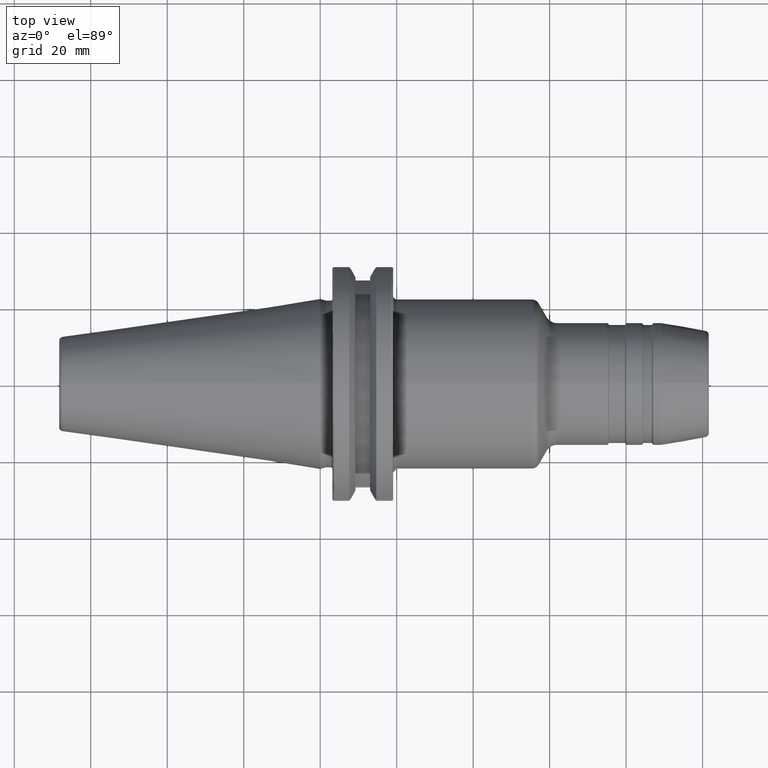
[diagram: clean part render]
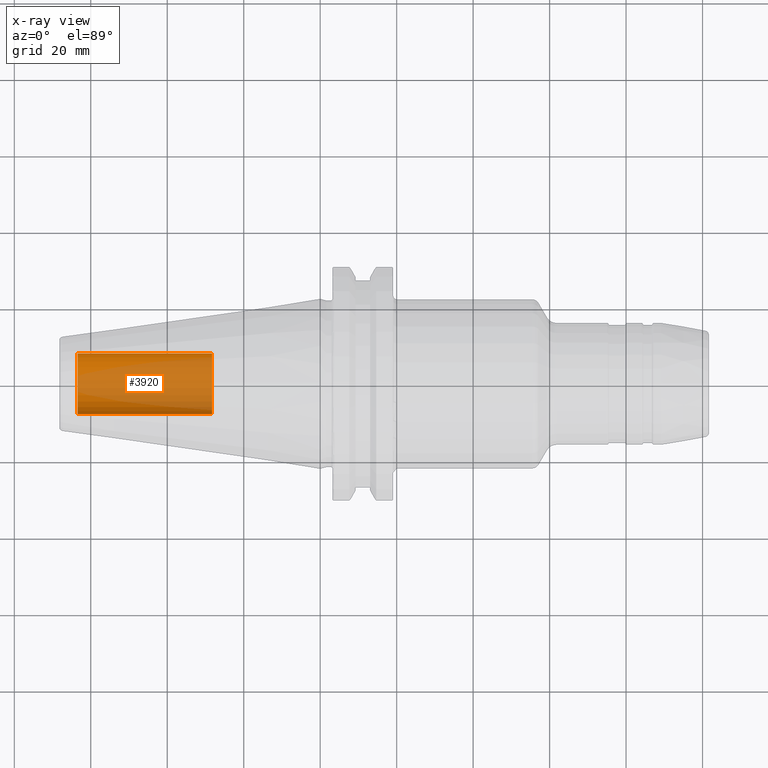
[diagram: x-ray — body ghosted, one internal face saturated and labeled with its STEP entity id]
A machine part, top view, then the same camera in x-ray: the body is ghosted and one INTERNAL B-rep face — a face not visible from any outside direction — is saturated and labeled: STEP entity #3920.
In plain terms, the highlighted cylindrical surface (edge-blend (fillet) strip) has radius 7.9375 mm, axis along (-1, 0, 0).
Its self-contained STEP definition (entity closure, byte-faithful):
#3855=CARTESIAN_POINT('',(-6.345E1,0.E0,0.E0));
#3856=DIRECTION('',(1.E0,0.E0,0.E0));
#3857=DIRECTION('',(0.E0,-1.E0,0.E0));
#3858=AXIS2_PLACEMENT_3D('',#3855,#3856,#3857);
#3865=DIRECTION('',(1.E0,0.E0,0.E0));
#3866=VECTOR('',#3865,3.52E1);
#3867=CARTESIAN_POINT('',(-6.345E1,-7.9375E0,0.E0));
#3868=LINE('',#3867,#3866);
#3869=DIRECTION('',(1.E0,0.E0,0.E0));
#3870=VECTOR('',#3869,3.52E1);
#3871=CARTESIAN_POINT('',(-6.345E1,7.9375E0,0.E0));
#3872=LINE('',#3871,#3870);
#3878=CARTESIAN_POINT('',(-2.825E1,0.E0,0.E0));
#3879=DIRECTION('',(-1.E0,0.E0,0.E0));
#3880=DIRECTION('',(0.E0,1.E0,0.E0));
#3881=AXIS2_PLACEMENT_3D('',#3878,#3879,#3880);
#3893=CARTESIAN_POINT('',(-2.825E1,7.9375E0,0.E0));
#3894=CARTESIAN_POINT('',(-2.825E1,-7.9375E0,0.E0));
#3895=VERTEX_POINT('',#3893);
#3896=VERTEX_POINT('',#3894);
#3897=CARTESIAN_POINT('',(-6.345E1,7.9375E0,0.E0));
#3898=CARTESIAN_POINT('',(-6.345E1,-7.9375E0,0.E0));
#3899=VERTEX_POINT('',#3897);
#3900=VERTEX_POINT('',#3898);
#3905=CARTESIAN_POINT('',(-1.674377256037E1,0.E0,0.E0));
#3906=DIRECTION('',(-1.E0,0.E0,0.E0));
#3907=DIRECTION('',(0.E0,1.E0,0.E0));
#3908=AXIS2_PLACEMENT_3D('',#3905,#3906,#3907);
#3909=CYLINDRICAL_SURFACE('',#3908,7.9375E0);
#3911=ORIENTED_EDGE('',*,*,#3910,.T.);
#3913=ORIENTED_EDGE('',*,*,#3912,.T.);
#3915=ORIENTED_EDGE('',*,*,#3914,.T.);
#3917=ORIENTED_EDGE('',*,*,#3916,.F.);
#3918=EDGE_LOOP('',(#3911,#3913,#3915,#3917));
#3919=FACE_OUTER_BOUND('',#3918,.F.);
#3920=ADVANCED_FACE('',(#3919),#3909,.F.);
#3859=CIRCLE('',#3858,7.9375E0);
#3882=CIRCLE('',#3881,7.9375E0);
#3910=EDGE_CURVE('',#3900,#3899,#3859,.T.);
#3912=EDGE_CURVE('',#3899,#3895,#3872,.T.);
#3914=EDGE_CURVE('',#3895,#3896,#3882,.T.);
#3916=EDGE_CURVE('',#3900,#3896,#3868,.T.);